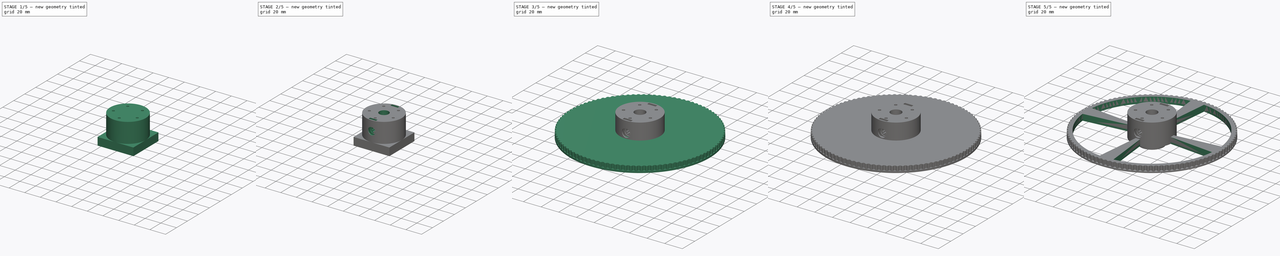
[diagram: build sequence overview — one tinted view per stage of 5, left to right]
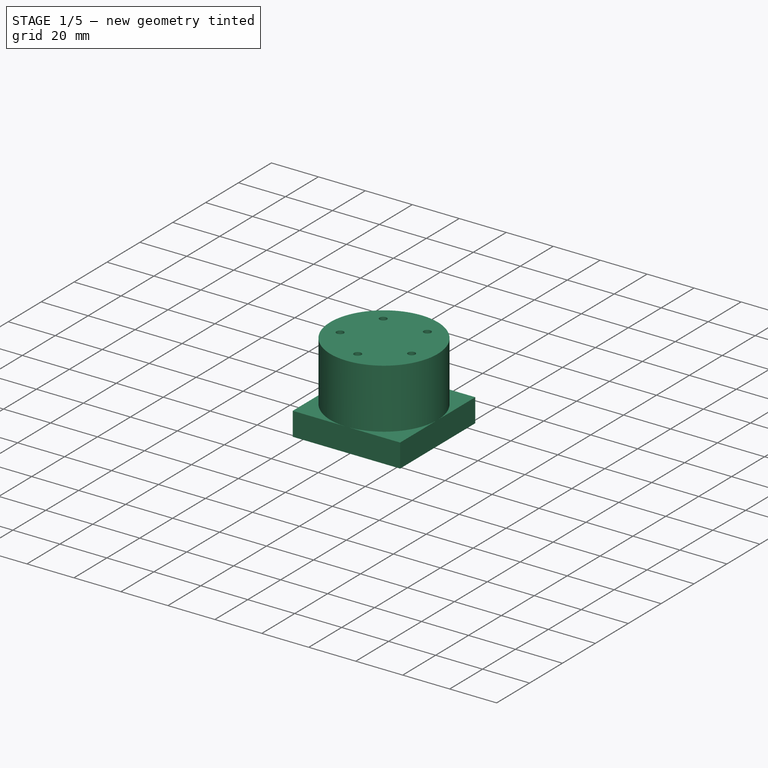
[diagram: stage 1 of 5 — iso view after this stage's code; geometry added in this stage tinted green]
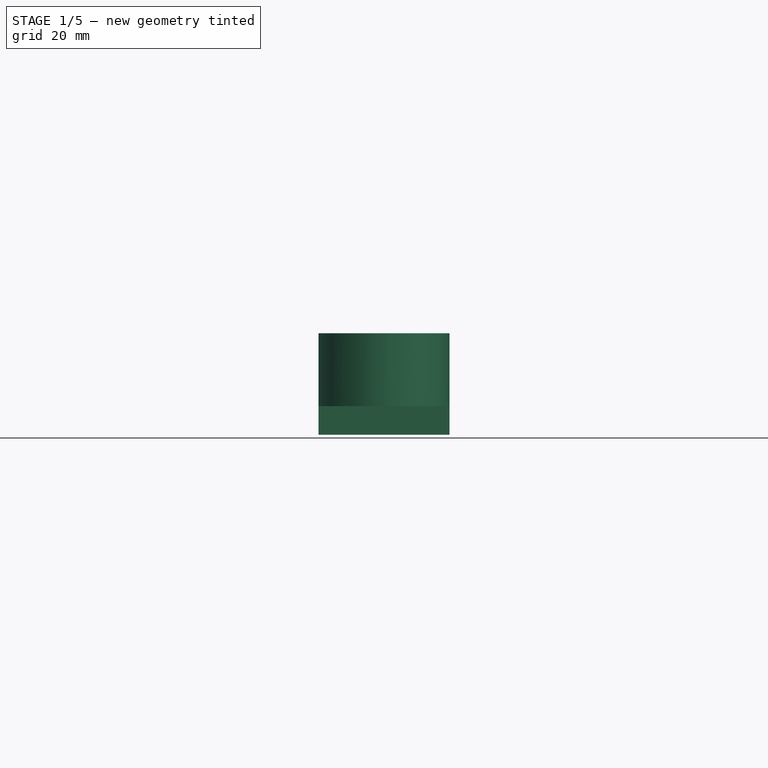
[diagram: stage 1 of 5 — front view after this stage's code; geometry added in this stage tinted green]
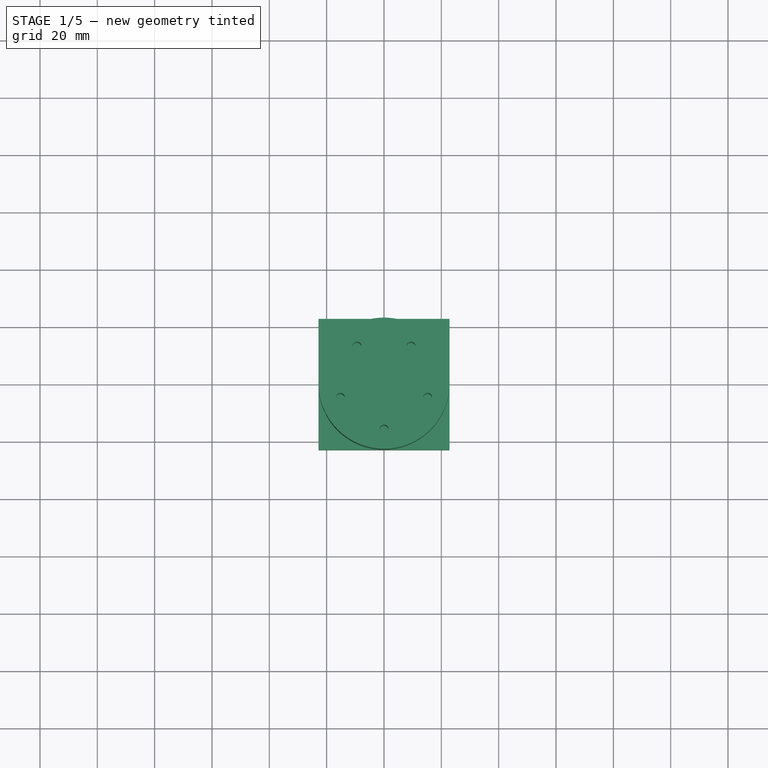
[diagram: stage 1 of 5 — top view after this stage's code; geometry added in this stage tinted green]
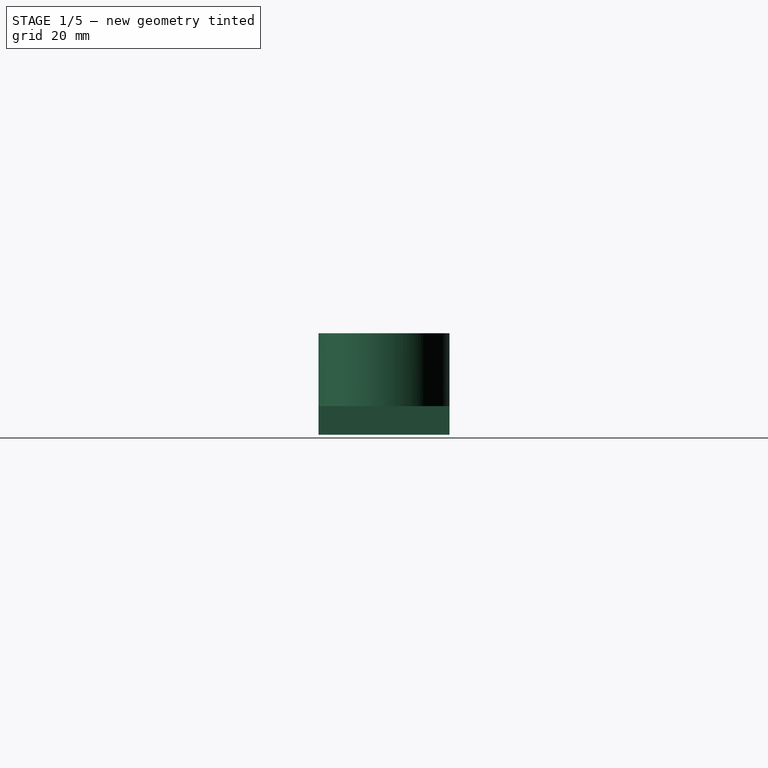
[diagram: stage 1 of 5 — right view after this stage's code; geometry added in this stage tinted green]
FCSTD DOCUMENT  (FreeCAD 0.21R33771 (Git))
Label: Spindle
License: All rights reserved
LicenseURL: http://en.wikipedia.org/wiki/All_rights_reserved
objects: Sketcher::SketchObject×25, PartDesign::Pocket×20, PartDesign::Body×5, App::Part×5, PartDesign::PolarPattern×5, PartDesign::Pad×5, PartDesign::FeaturePython×2, PartDesign::Chamfer×2, PartDesign::Fillet×1
note: 93 computed .brp shape members not serialized (recipe doc carries the construction recipe); baked Part::Feature solids carry a one-line shape summary decoded from their .brp

FEATURE [PartDesign::Body] Body002  label="SpoolWallBody"
  Group = -> [Sketch005,Pad,Sketch010,Pad001,Sketch007,Pocket005,Sketch006,Pocket006,Sketch008,Pocket007,PolarPattern002,Chamfer001,Sketch009,Pocket008,PolarPattern003,Fillet]
  Origin = -> Origin005
  Tip = -> Fillet
FEATURE [App::Part] Part002  label="SpoolWall"
  Group = -> [Body002]
  Origin = -> Origin004
FEATURE [Sketcher::SketchObject] Sketch019
  FullyConstrained = true
  MapMode = 5
  Support = -> [XY_Plane009]
  sketch-geometry (1):
    g0: Circle CenterX=0 CenterY=0 CenterZ=0 NormalX=0 NormalY=0 NormalZ=1 AngleXU=0 Radius=22.86
  constraints (2):
    c: Coincident(g0,g-1)
    c: Radius(g0) = 22.86
FEATURE [PartDesign::Pad] Pad003  label="HubPad"
  Direction = (0,0,1)
  Length = 25.4
  Length2 = 10
  Profile = -> Sketch019
  ReferenceAxis = -> Sketch019 [N_Axis]
  Type = 0
FEATURE [Sketcher::SketchObject] Sketch021
  FullyConstrained = true
  MapMode = 5
  Placement = pos=(0,0,0) rot=(1,0,0;3.14159rad)
  expr: Constraints[2] = 16 mm
  sketch-geometry (1):
    g0: Circle CenterX=0 CenterY=16 CenterZ=0 NormalX=0 NormalY=0 NormalZ=1 AngleXU=0 Radius=1.55
  constraints (3):
    c: PointOnObject(g0,g-2)
    c: Diameter(g0) = 3.1
    c: DistanceY(g-1,g0) = 16
FEATURE [PartDesign::Pocket] Pocket017  label="M3Pocket002"
  BaseFeature = -> Pad003
  Direction = (0,0,1)
  Length = 5
  Length2 = 5
  Profile = -> Sketch021
  ReferenceAxis = -> Sketch021 [N_Axis]
  Type = 1
FEATURE [PartDesign::PolarPattern] PolarPattern007  label="M3PolarPattern"
  Angle = 360
  Axis = -> Sketch021 [N_Axis]
  BaseFeature = -> Pocket017
  Occurrences = 5
  Originals = -> [Pocket017]
FEATURE [Sketcher::SketchObject] Sketch022
  FullyConstrained = true
  MapMode = 5
  Placement = pos=(0,0,0) rot=(1,0,0;3.14159rad)
  Support = -> [PolarPattern007]
  sketch-geometry (4):
    g0: LineSegment StartX=-22.86 StartY=22.86 StartZ=0 EndX=22.86 EndY=22.86 EndZ=0
    g1: LineSegment StartX=22.86 StartY=22.86 StartZ=0 EndX=22.86 EndY=-22.86 EndZ=0
    g2: LineSegment StartX=22.86 StartY=-22.86 StartZ=0 EndX=-22.86 EndY=-22.86 EndZ=0
    g3: LineSegment StartX=-22.86 StartY=-22.86 StartZ=0 EndX=-22.86 EndY=22.86 EndZ=0
  constraints (11):
    c: Coincident(g0,g1)
    c: Coincident(g1,g2)
    c: Coincident(g2,g3)
    c: Coincident(g3,g0)
    c: Horizontal(g0)
    c: Horizontal(g2)
    c: Vertical(g1)
    c: Vertical(g3)
    c: Symmetric(g0,g1,g-1)
    c: DistanceY(g1,g1) = 45.72
    c: DistanceX(g0,g0) = 45.72
FEATURE [PartDesign::Pad] Pad004  label="FakePad"
  BaseFeature = -> PolarPattern007
  Direction = (0,0,-1)
  Length = 10
  Length2 = 10
  Profile = -> Sketch022
  ReferenceAxis = -> Sketch022 [N_Axis]
  Type = 0
FEATURE [Sketcher::SketchObject] Sketch032
  FullyConstrained = true
  MapMode = 5
  Support = -> [XY_Plane011]
  sketch-geometry (4):
    g0: LineSegment StartX=-4 StartY=12.7 StartZ=0 EndX=4 EndY=12.7 EndZ=0
    g1: LineSegment StartX=4 StartY=12.7 StartZ=0 EndX=4 EndY=-12.7 EndZ=0
    g2: LineSegment StartX=4 StartY=-12.7 StartZ=0 EndX=-4 EndY=-12.7 EndZ=0
    g3: LineSegment StartX=-4 StartY=-12.7 StartZ=0 EndX=-4 EndY=12.7 EndZ=0
  constraints (11):
    c: Coincident(g0,g1)
    c: Coincident(g1,g2)
    c: Coincident(g2,g3)
    c: Coincident(g3,g0)
    c: Horizontal(g0)
    c: Horizontal(g2)
    c: Vertical(g1)
    c: Vertical(g3)
    c: DistanceX(g0,g0) = 8
    c: DistanceY(g1,g1) = 25.4
    c: Symmetric(g0,g1,g-1)
FEATURE [PartDesign::Pad] Pad005  label="SpringClipPad"
  Direction = (0,0,1)
  Length = 2.6
  Length2 = 10
  Profile = -> Sketch032
  ReferenceAxis = -> Sketch032 [N_Axis]
  Type = 0
FEATURE [PartDesign::Body] Body004  label="HubBody"
  Group = -> [Sketch019,Pad003,Sketch021,Pocket017,PolarPattern007,Sketch022,Pad004,Sketch023,Pocket018,Sketch025,Pocket020,Sketch027,Sketch028,Pocket023,Pocket024,Sketch029,Pocket025,Sketch031,Pocket027,Sketch034,Pocket029,Sketch030,Pocket030]
  Origin = -> Origin009
  Tip = -> Pocket030
FEATURE [App::Part] Part004  label="HubPart"
  Group = -> [Body004]
  Origin = -> Origin008
FEATURE [Sketcher::SketchObject] Sketch035
  FullyConstrained = true
  MapMode = 5
  Placement = pos=(0,0,2.9) rot=(0,0,1;0rad)
  sketch-geometry (1):
    g0: Circle CenterX=0 CenterY=0 CenterZ=0 NormalX=0 NormalY=0 NormalZ=1 AngleXU=0 Radius=1.7685
  constraints (2):
    c: Coincident(g0,g-1)
    c: Diameter(g0) = 3.537
FEATURE [PartDesign::Pocket] Pocket031  label="WirePocket1"
  BaseFeature = -> Pad005
  Direction = (0,0,1)
  Length = 5
  Length2 = 5
  Profile = -> Sketch033
  ReferenceAxis = -> Sketch033 [N_Axis]
  Type = 1
FEATURE [PartDesign::Pocket] Pocket032  label="WirePocket2"
  BaseFeature = -> Pocket031
  Direction = (0,0,-1)
  Length = 5
  Length2 = 5
  Profile = -> Sketch035
  ReferenceAxis = -> Sketch035 [N_Axis]
  Type = 1
FEATURE [PartDesign::Body] Body005  label="SpringClip"
  Group = -> [Sketch032,Pad005,Sketch033,Pocket031,Sketch035,Pocket032]
  Origin = -> Origin011
  Tip = -> Pocket032
FEATURE [App::Part] Part005  label="SpringClipPart"
  Group = -> [Body005]
  Origin = -> Origin010
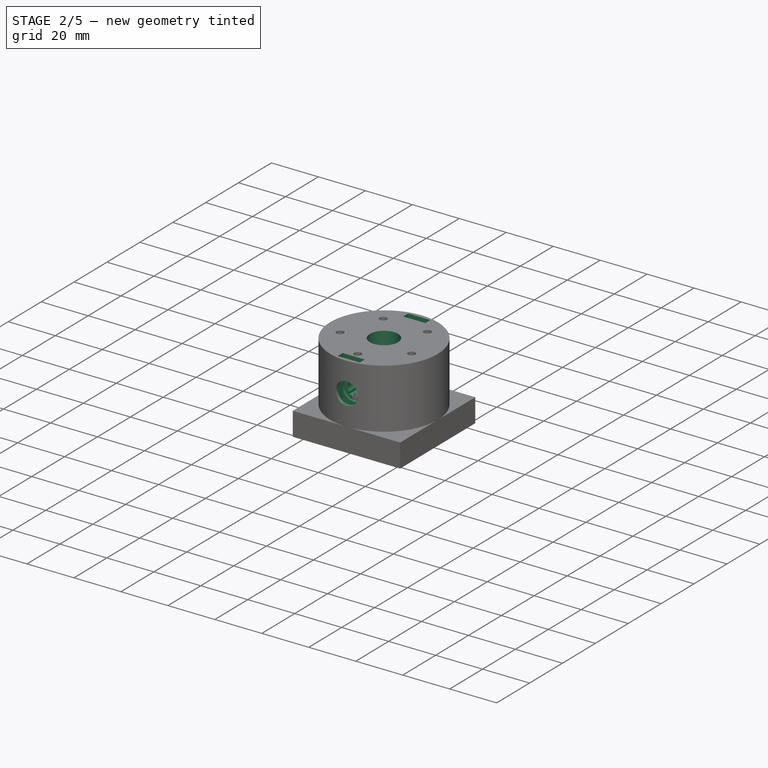
[diagram: stage 2 of 5 — iso view after this stage's code; geometry added in this stage tinted green]
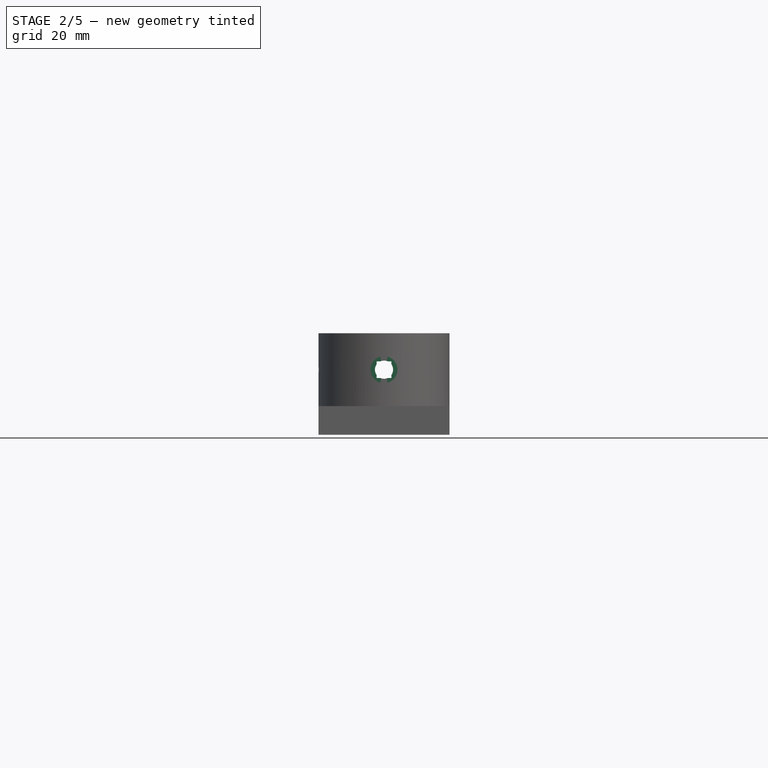
[diagram: stage 2 of 5 — front view after this stage's code; geometry added in this stage tinted green]
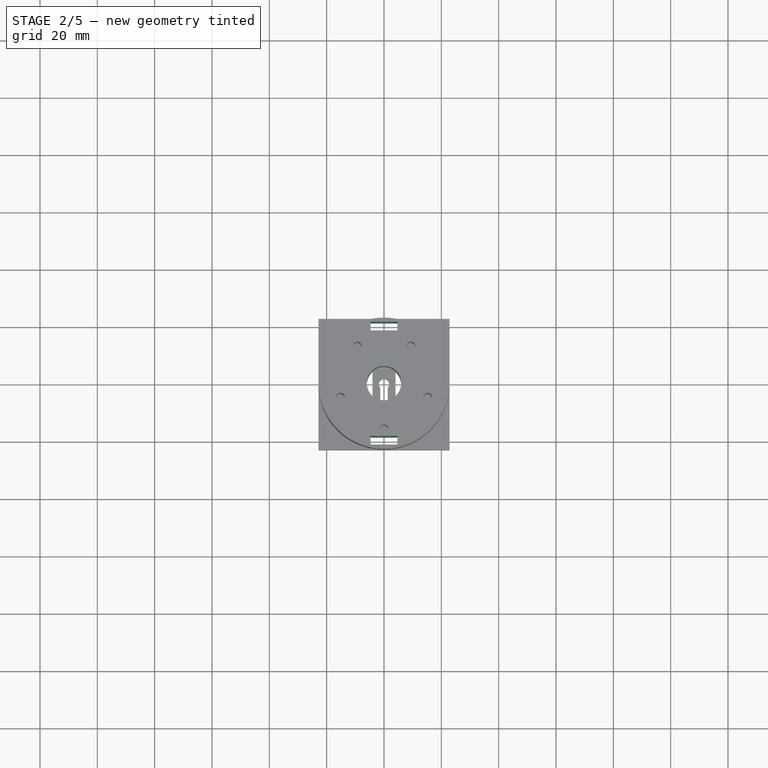
[diagram: stage 2 of 5 — top view after this stage's code; geometry added in this stage tinted green]
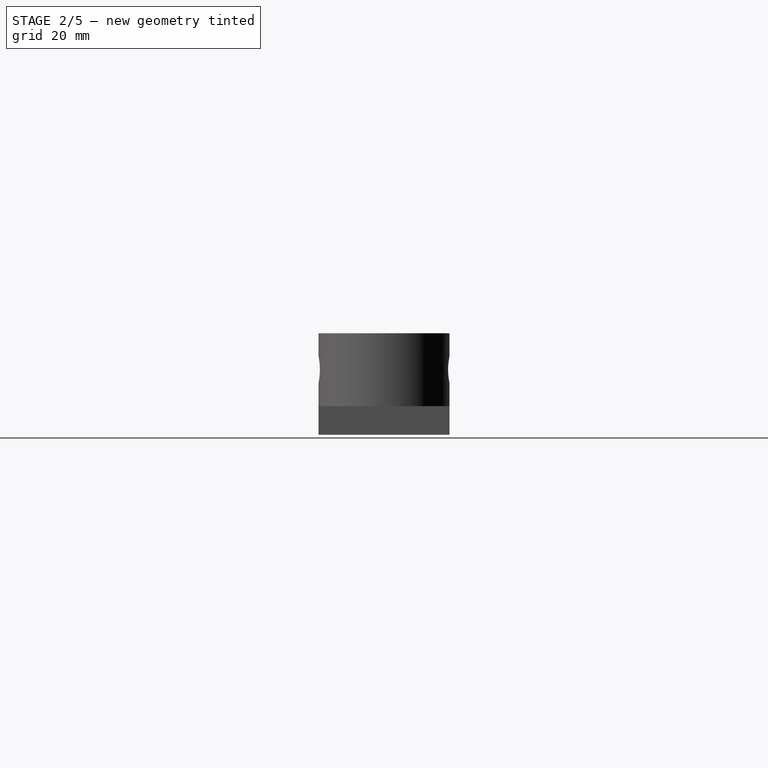
[diagram: stage 2 of 5 — right view after this stage's code; geometry added in this stage tinted green]
FEATURE [Sketcher::SketchObject] Sketch023
  FullyConstrained = true
  MapMode = 5
  Placement = pos=(0,22.86,0) rot=(0,0.707107,0.707107;3.14159rad)
  Support = -> [Pad004]
  sketch-geometry (4):
    g0: LineSegment StartX=-2.575 StartY=15.6 StartZ=0 EndX=2.575 EndY=15.6 EndZ=0
    g1: LineSegment StartX=2.575 StartY=15.6 StartZ=0 EndX=2.575 EndY=9.8 EndZ=0
    g2: LineSegment StartX=2.575 StartY=9.8 StartZ=0 EndX=-2.575 EndY=9.8 EndZ=0
    g3: LineSegment StartX=-2.575 StartY=9.8 StartZ=0 EndX=-2.575 EndY=15.6 EndZ=0
  constraints (12):
    c: Coincident(g0,g1)
    c: Coincident(g1,g2)
    c: Coincident(g2,g3)
    c: Coincident(g3,g0)
    c: Horizontal(g0)
    c: Horizontal(g2)
    c: Vertical(g1)
    c: Vertical(g3)
    c: DistanceX(g0,g0) = 5.15
    c: DistanceY(g1,g1) = 5.8
    c: DistanceY(g-1,g2) = 9.8
    c: DistanceX(g2,g-1) = 2.575
FEATURE [PartDesign::Pocket] Pocket018  label="BrushHole"
  BaseFeature = -> Pad004
  Direction = (0,-1,2e-16)
  Length = 5
  Length2 = 5
  Profile = -> Sketch023
  ReferenceAxis = -> Sketch023 [N_Axis]
  Type = 1
FEATURE [Sketcher::SketchObject] Sketch025
  FullyConstrained = true
  MapMode = 5
  Placement = pos=(0,-22.86,0) rot=(1,0,0;1.5708rad)
  sketch-geometry (1):
    g0: Circle CenterX=0 CenterY=12.7 CenterZ=0 NormalX=0 NormalY=0 NormalZ=1 AngleXU=0 Radius=4.7
  constraints (3):
    c: PointOnObject(g0,g-2)
    c: Diameter(g0) = 9.4
    c: DistanceY(g-1,g0) = 12.7
FEATURE [PartDesign::Pocket] Pocket020  label="SprintPocket1"
  BaseFeature = -> Pocket018
  Direction = (0,1,-2e-16)
  Length = 5.21
  Length2 = 5
  Profile = -> Sketch025
  ReferenceAxis = -> Sketch025 [N_Axis]
  Type = 0
  expr: Length = 0.9 " - 6 mm - 11.65 mm
FEATURE [Sketcher::SketchObject] Sketch028
  FullyConstrained = true
  MapMode = 5
  Placement = pos=(0,0,25.4) rot=(0,0,1;0rad)
  sketch-geometry (1):
    g0: Circle CenterX=0 CenterY=0 CenterZ=0 NormalX=0 NormalY=0 NormalZ=1 AngleXU=0 Radius=6
  constraints (2):
    c: Coincident(g0,g-1)
    c: Diameter(g0) = 12
FEATURE [PartDesign::Pocket] Pocket023  label="CenterPocket001"
  BaseFeature = -> Pocket020
  Direction = (0,0,-1)
  Length = 5
  Length2 = 5
  Profile = -> Sketch028
  ReferenceAxis = -> Sketch028 [N_Axis]
  Type = 1
FEATURE [Sketcher::SketchObject] Sketch027
  FullyConstrained = true
  MapMode = 5
  Placement = pos=(-22.86,0,0) rot=(0.57735,-0.57735,-0.57735;2.0944rad)
  Support = -> [Pocket023]
  sketch-geometry (1):
    g0: Circle CenterX=0 CenterY=12.7 CenterZ=0 NormalX=0 NormalY=0 NormalZ=1 AngleXU=0 Radius=1.5
  constraints (3):
    c: PointOnObject(g0,g-2)
    c: Diameter(g0) = 3
    c: DistanceY(g-1,g0) = 12.7
FEATURE [PartDesign::Pocket] Pocket024  label="SideHolePocket"
  BaseFeature = -> Pocket023
  Direction = (1,0,0)
  Length = 10
  Length2 = 5
  Profile = -> Sketch027
  ReferenceAxis = -> Sketch027 [N_Axis]
  Type = 0
FEATURE [Sketcher::SketchObject] Sketch029
  FullyConstrained = true
  MapMode = 5
  Placement = pos=(0,22.86,0) rot=(0,0.707107,0.707107;3.14159rad)
  Support = -> [Pocket024]
  sketch-geometry (1):
    g0: Circle CenterX=0 CenterY=12.7 CenterZ=0 NormalX=0 NormalY=0 NormalZ=1 AngleXU=0 Radius=4.7
  constraints (3):
    c: PointOnObject(g0,g-2)
    c: Diameter(g0) = 9.4
    c: DistanceY(g-1,g0) = 12.7
FEATURE [PartDesign::Pocket] Pocket025  label="SpringPocket2"
  BaseFeature = -> Pocket024
  Direction = (0,-1,2e-16)
  Length = 5.21
  Length2 = 5
  Profile = -> Sketch029
  ReferenceAxis = -> Sketch029 [N_Axis]
  Type = 0
  expr: Length = 0.9 " - 6 mm - 11.65 mm
FEATURE [Sketcher::SketchObject] Sketch031
  FullyConstrained = true
  MapMode = 5
  Placement = pos=(0,0,25.4) rot=(0,0,1;0rad)
  sketch-geometry (8):
    g0: LineSegment StartX=-4.7 StartY=21.4 StartZ=0 EndX=4.7 EndY=21.4 EndZ=0
    g1: LineSegment StartX=4.7 StartY=21.4 StartZ=0 EndX=4.7 EndY=18.4 EndZ=0
    g2: LineSegment StartX=4.7 StartY=18.4 StartZ=0 EndX=-4.7 EndY=18.4 EndZ=0
    g3: LineSegment StartX=-4.7 StartY=18.4 StartZ=0 EndX=-4.7 EndY=21.4 EndZ=0
    g4: LineSegment StartX=-4.7 StartY=-18.4 StartZ=0 EndX=4.7 EndY=-18.4 EndZ=0
    g5: LineSegment StartX=4.7 StartY=-18.4 StartZ=0 EndX=4.7 EndY=-21.4 EndZ=0
    g6: LineSegment StartX=4.7 StartY=-21.4 StartZ=0 EndX=-4.7 EndY=-21.4 EndZ=0
    g7: LineSegment StartX=-4.7 StartY=-21.4 StartZ=0 EndX=-4.7 EndY=-18.4 EndZ=0
  constraints (24):
    c: Coincident(g0,g1)
    c: Coincident(g1,g2)
    c: Coincident(g2,g3)
    c: Coincident(g3,g0)
    c: Horizontal(g0)
    c: Horizontal(g2)
    c: Vertical(g1)
    c: Vertical(g3)
    c: Coincident(g4,g5)
    c: Coincident(g5,g6)
    c: Coincident(g6,g7)
    c: Coincident(g7,g4)
    c: Horizontal(g4)
    c: Horizontal(g6)
    c: Vertical(g5)
    c: Vertical(g7)
    c: DistanceX(g0,g0) = 9.4
    c: DistanceX(g4,g4) = 9.4
    c: DistanceY(g1,g1) = 3
    c: DistanceY(g5,g5) = 3
    c: DistanceY(g-1,g2) = 18.4
    c: DistanceY(g4,g-1) = 18.4
    c: DistanceX(g2,g-1) = 4.7
    c: DistanceX(g4,g-1) = 4.7
FEATURE [PartDesign::Pocket] Pocket027  label="SpringHolderPocket"
  BaseFeature = -> Pocket025
  Direction = (0,0,-1)
  Length = 5
  Length2 = 5
  Profile = -> Sketch031
  ReferenceAxis = -> Sketch031 [N_Axis]
  Type = 1
FEATURE [Sketcher::SketchObject] Sketch033
  FullyConstrained = true
  MapMode = 5
  Placement = pos=(0,0,0) rot=(1,0,0;3.14159rad)
  Support = -> [Pad005]
  sketch-geometry (4):
    g0: ArcOfCircle CenterX=0 CenterY=0 CenterZ=0 NormalX=0 NormalY=0 NormalZ=1 AngleXU=0 Radius=1.294 StartAngle=3.14159 EndAngle=6.28319
    g1: LineSegment StartX=1.294 StartY=-3e-16 StartZ=0 EndX=1.294 EndY=12.7 EndZ=0
    g2: LineSegment StartX=1.294 StartY=12.7 StartZ=0 EndX=-1.294 EndY=12.7 EndZ=0
    g3: LineSegment StartX=-1.294 StartY=12.7 StartZ=0 EndX=-1.294 EndY=0 EndZ=0
  constraints (12):
    c: Horizontal(g2)
    c: Vertical(g1)
    c: Vertical(g3)
    c: DistanceX(g0,g0) = 1.294
    c: DistanceY(g0,g0) = 0
    c: DistanceY(g0,g0) = 0
    c: Coincident(g0,g-1)
    c: Coincident(g3,g0)
    c: Coincident(g1,g0)
    c: DistanceY(g1,g1) = 12.7
    c: Coincident(g2,g1)
    c: Coincident(g2,g3)
FEATURE [Sketcher::SketchObject] Sketch034
  FullyConstrained = true
  Placement = pos=(0,-22.86,0) rot=(1,0,0;1.5708rad)
  sketch-geometry (1):
    g0: Circle CenterX=0 CenterY=12.7 CenterZ=0 NormalX=0 NormalY=0 NormalZ=1 AngleXU=0 Radius=3.1645
  constraints (3):
    c: PointOnObject(g0,g-2)
    c: DistanceY(g-1,g0) = 12.7
    c: Diameter(g0) = 6.329
FEATURE [PartDesign::Pocket] Pocket029  label="ExtraSpingPocket"
  BaseFeature = -> Pocket027
  Direction = (0,1,-2e-16)
  Length = 18.86
  Length2 = 5
  Profile = -> Sketch034
  ReferenceAxis = -> Sketch034 [N_Axis]
  Type = 1
  expr: Length = 1.8 " / 2 - 4 mm
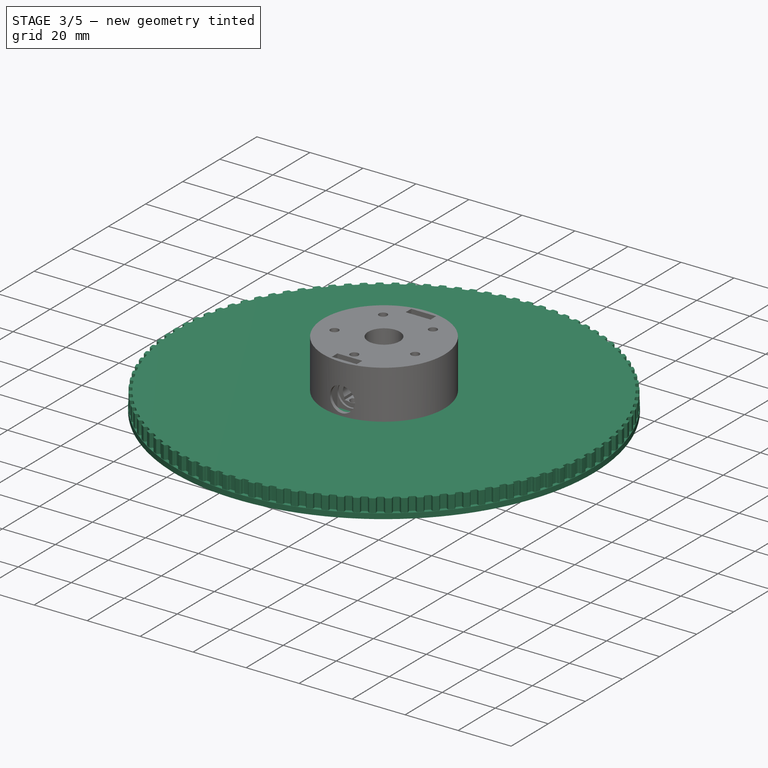
[diagram: stage 3 of 5 — iso view after this stage's code; geometry added in this stage tinted green]
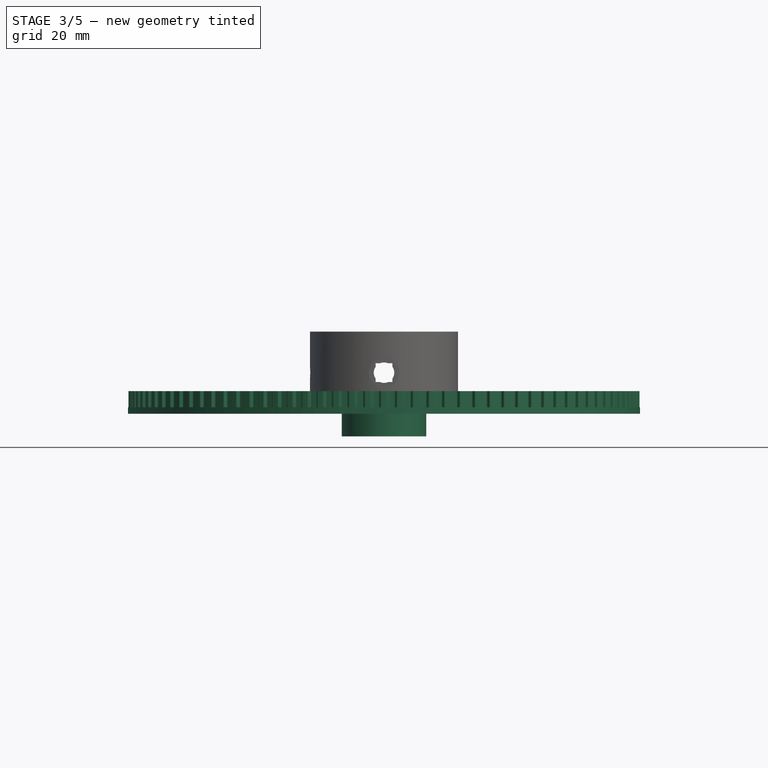
[diagram: stage 3 of 5 — front view after this stage's code; geometry added in this stage tinted green]
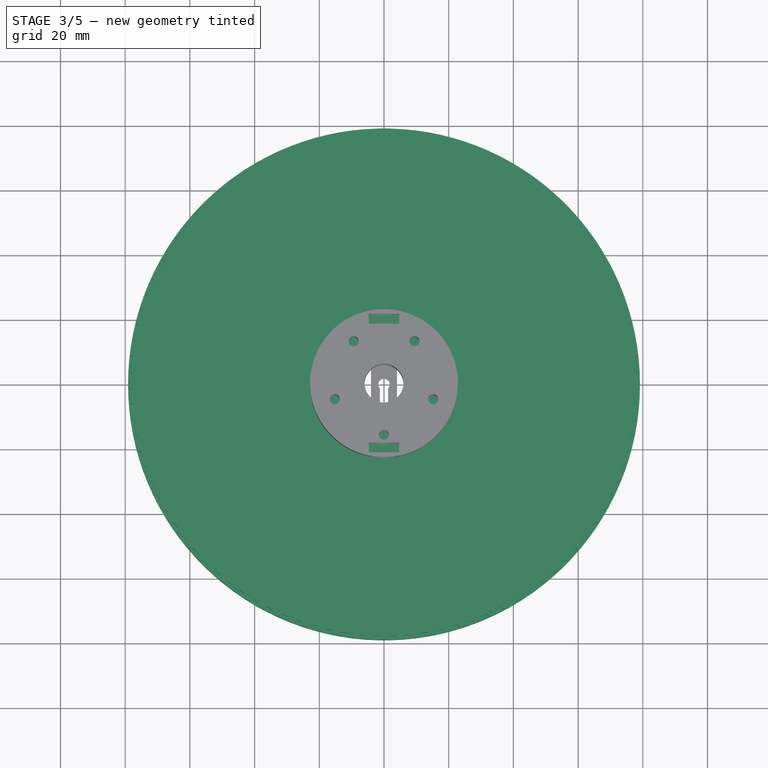
[diagram: stage 3 of 5 — top view after this stage's code; geometry added in this stage tinted green]
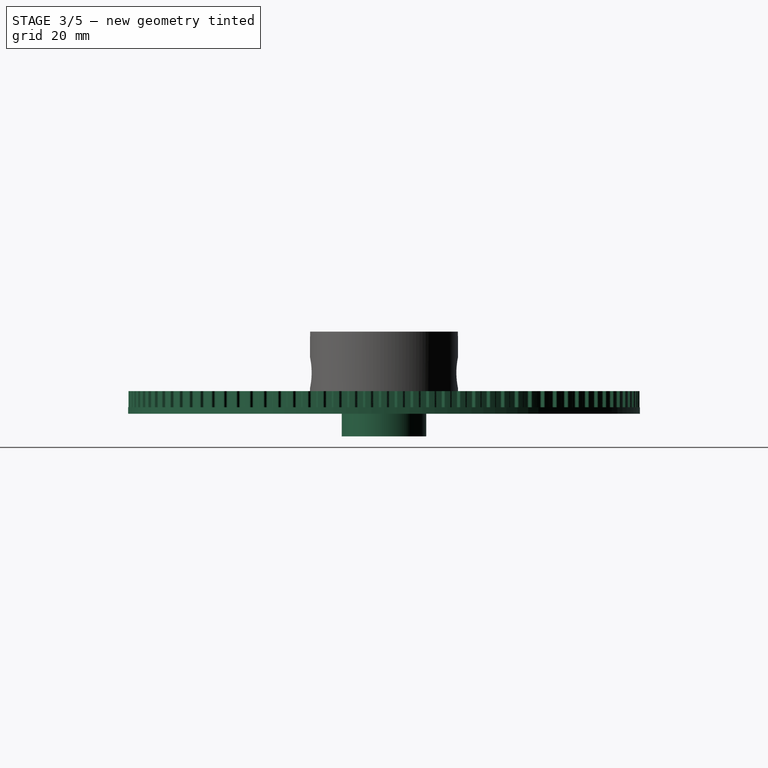
[diagram: stage 3 of 5 — right view after this stage's code; geometry added in this stage tinted green]
FEATURE [PartDesign::FeaturePython] TimingGearT  # WARN: FeaturePython — macro-defined, semantics opaque (R4)
  AttacherType = Attacher::AttachEngine3D
  alpha = 25
  backlash = 0
  head_fillet = 0.4
  height = 7
  pitch = 5
  root_fillet = 0.4
  teeth = 100
  tooth_height = 1.2
  u = 0.6
  expr: height = 7 mm
FEATURE [PartDesign::Body] Body001  label="LittleGearBody"
  Group = -> [TimingGearT001,Sketch,Pocket]
  Origin = -> Origin003
  Tip = -> Pocket
FEATURE [App::Part] Part001  label="LittleGearPart"
  Group = -> [Body001]
  Origin = -> Origin002
FEATURE [Sketcher::SketchObject] Sketch001
  FullyConstrained = true
  MapMode = 5
  Placement = pos=(0,0,0) rot=(1,0,0;3.14159rad)
  Support = -> [TimingGearT]
  sketch-geometry (1):
    g0: Circle CenterX=0 CenterY=0 CenterZ=0 NormalX=0 NormalY=0 NormalZ=1 AngleXU=0 Radius=7
  constraints (2):
    c: Coincident(g0,g-1)
    c: Diameter(g0) = 14
FEATURE [PartDesign::Pocket] Pocket001  label="CenterPocket"
  BaseFeature = -> TimingGearT
  Direction = (0,0,1)
  Length = 5
  Length2 = 5
  Profile = -> Sketch001
  ReferenceAxis = -> Sketch001 [N_Axis]
  Type = 1
FEATURE [PartDesign::Body] Body  label="BigGearBody"
  Group = -> [TimingGearT,Sketch001,Pocket001,Sketch002,Pocket002,Sketch003,Pocket003,PolarPattern,Chamfer,Sketch004,Pocket004,PolarPattern001]
  Origin = -> Origin001
  Tip = -> PolarPattern001
FEATURE [App::Part] Part  label="BigGearPart"
  Group = -> [Body]
  Origin = -> Origin
FEATURE [Sketcher::SketchObject] Sketch005
  FullyConstrained = true
  MapMode = 5
  Support = -> [XY_Plane005]
  sketch-geometry (1):
    g0: Circle CenterX=0 CenterY=0 CenterZ=0 NormalX=0 NormalY=0 NormalZ=1 AngleXU=0 Radius=79.121
  constraints (2):
    c: Coincident(g0,g-1)
    c: Radius(g0) = 79.121
FEATURE [PartDesign::Pad] Pad  label="SpoolWallPad"
  Direction = (0,0,1)
  Length = 2
  Length2 = 10
  Profile = -> Sketch005
  ReferenceAxis = -> Sketch005 [N_Axis]
  Type = 0
FEATURE [Sketcher::SketchObject] Sketch006
  FullyConstrained = true
  MapMode = 5
  Placement = pos=(0,0,0) rot=(1,0,0;3.14159rad)
  Support = -> [TimingGearT]
  sketch-geometry (1):
    g0: Circle CenterX=0 CenterY=0 CenterZ=0 NormalX=0 NormalY=0 NormalZ=1 AngleXU=0 Radius=7
  constraints (2):
    c: Coincident(g0,g-1)
    c: Diameter(g0) = 14
FEATURE [Sketcher::SketchObject] Sketch008
  FullyConstrained = true
  MapMode = 5
  Placement = pos=(0,0,0) rot=(1,0,0;3.14159rad)
  Support = -> [Pocket002]
  expr: Constraints[2] = 16 mm
  sketch-geometry (1):
    g0: Circle CenterX=0 CenterY=16 CenterZ=0 NormalX=0 NormalY=0 NormalZ=1 AngleXU=0 Radius=1.55
  constraints (3):
    c: PointOnObject(g0,g-2)
    c: Diameter(g0) = 3.1
    c: DistanceY(g-1,g0) = 16
FEATURE [Sketcher::SketchObject] Sketch009
  FullyConstrained = true
  MapMode = 5
  Placement = pos=(0,0,0) rot=(1,0,0;3.14159rad)
  Support = -> [Chamfer]
  sketch-geometry (4):
    g0: ArcOfCircle CenterX=0 CenterY=0 CenterZ=0 NormalX=0 NormalY=0 NormalZ=1 AngleXU=0 Radius=22.86 StartAngle=1.67625 EndAngle=3.03613
    g1: ArcOfCircle CenterX=0 CenterY=0 CenterZ=0 NormalX=0 NormalY=0 NormalZ=1 AngleXU=0 Radius=73.66 StartAngle=1.67443 EndAngle=3.03796
    g2: LineSegment StartX=-2.40631 StartY=22.733 StartZ=0 EndX=-7.62 EndY=73.2648 EndZ=0
    g3: LineSegment StartX=-22.733 StartY=2.40631 StartZ=0 EndX=-73.2648 EndY=7.62 EndZ=0
  constraints (12):
    c: Coincident(g0,g-1)
    c: Radius(g0) = 22.86
    c: Coincident(g1,g0)
    c: Radius(g1) = 73.66
    c: DistanceX(g2,g0) = 7.62
    c: DistanceY(g0,g3) = 7.62
    c: Coincident(g1,g3)
    c: Coincident(g1,g2)
    c: Coincident(g3,g0)
    c: Coincident(g2,g0)
    c: DistanceX(g0,g0) = 22.733
    c: DistanceY(g0,g0) = 22.733
FEATURE [Sketcher::SketchObject] Sketch010
  FullyConstrained = true
  MapMode = 5
  Placement = pos=(0,0,0) rot=(1,0,0;3.14159rad)
  Support = -> [Pad]
  sketch-geometry (1):
    g0: Circle CenterX=0 CenterY=0 CenterZ=0 NormalX=0 NormalY=0 NormalZ=1 AngleXU=0 Radius=13.0462
  constraints (2):
    c: Coincident(g0,g-1)
    c: Radius(g0) = 13.0462
FEATURE [PartDesign::Pad] Pad001  label="BearingWall"
  BaseFeature = -> Pad
  Direction = (0,0,-1)
  Length = 7
  Length2 = 10
  Profile = -> Sketch010
  ReferenceAxis = -> Sketch010 [N_Axis]
  Type = 0
FEATURE [Sketcher::SketchObject] Sketch007
  FullyConstrained = true
  MapMode = 5
  Placement = pos=(0,0,-7) rot=(1,0,0;3.14159rad)
  Support = -> [Pad001]
  sketch-geometry (1):
    g0: Circle CenterX=0 CenterY=0 CenterZ=0 NormalX=0 NormalY=0 NormalZ=1 AngleXU=0 Radius=11.05
  constraints (2):
    c: Coincident(g0,g-1)
    c: Diameter(g0) = 22.1
FEATURE [PartDesign::Pocket] Pocket005  label="BearingPocket001"
  BaseFeature = -> Pad001
  Direction = (0,0,1)
  Length = 7
  Length2 = 5
  Profile = -> Sketch007
  ReferenceAxis = -> Sketch007 [N_Axis]
  Type = 0
FEATURE [PartDesign::Pocket] Pocket006  label="ShaftPocket001"
  BaseFeature = -> Pocket005
  Direction = (0,0,1)
  Length = 5.0038
  Length2 = 5
  Profile = -> Sketch006
  ReferenceAxis = -> Sketch006 [N_Axis]
  Type = 0
FEATURE [Sketcher::SketchObject] Sketch030
  FullyConstrained = true
  MapMode = 5
  Placement = pos=(0,0,-10) rot=(1,0,0;3.14159rad)
  Support = -> [Pocket029]
  sketch-geometry (4):
    g0: LineSegment StartX=-22.86 StartY=22.86 StartZ=0 EndX=22.86 EndY=22.86 EndZ=0
    g1: LineSegment StartX=22.86 StartY=22.86 StartZ=0 EndX=22.86 EndY=-22.86 EndZ=0
    g2: LineSegment StartX=22.86 StartY=-22.86 StartZ=0 EndX=-22.86 EndY=-22.86 EndZ=0
    g3: LineSegment StartX=-22.86 StartY=-22.86 StartZ=0 EndX=-22.86 EndY=22.86 EndZ=0
  constraints (11):
    c: Coincident(g0,g1)
    c: Coincident(g1,g2)
    c: Coincident(g2,g3)
    c: Coincident(g3,g0)
    c: Horizontal(g0)
    c: Horizontal(g2)
    c: Vertical(g1)
    c: Vertical(g3)
    c: DistanceX(g0,g0) = 45.72
    c: DistanceY(g1,g1) = 45.72
    c: Symmetric(g0,g1,g-1)
FEATURE [PartDesign::Pocket] Pocket030  label="FakePadRemoval"
  BaseFeature = -> Pocket029
  Direction = (0,0,1)
  Length = 10
  Length2 = 5
  Profile = -> Sketch030
  ReferenceAxis = -> Sketch030 [N_Axis]
  Type = 0
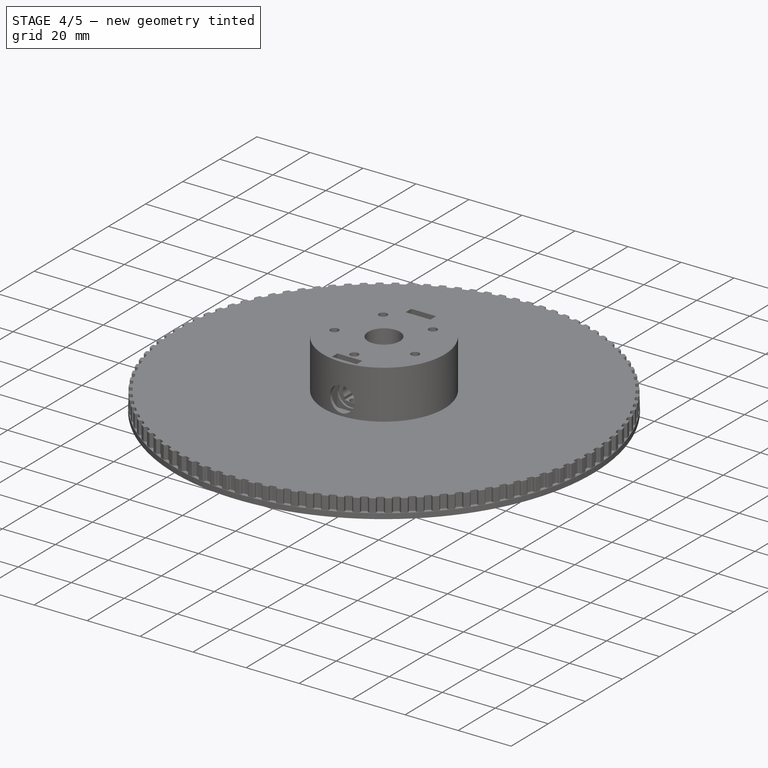
[diagram: stage 4 of 5 — iso view after this stage's code; geometry added in this stage tinted green]
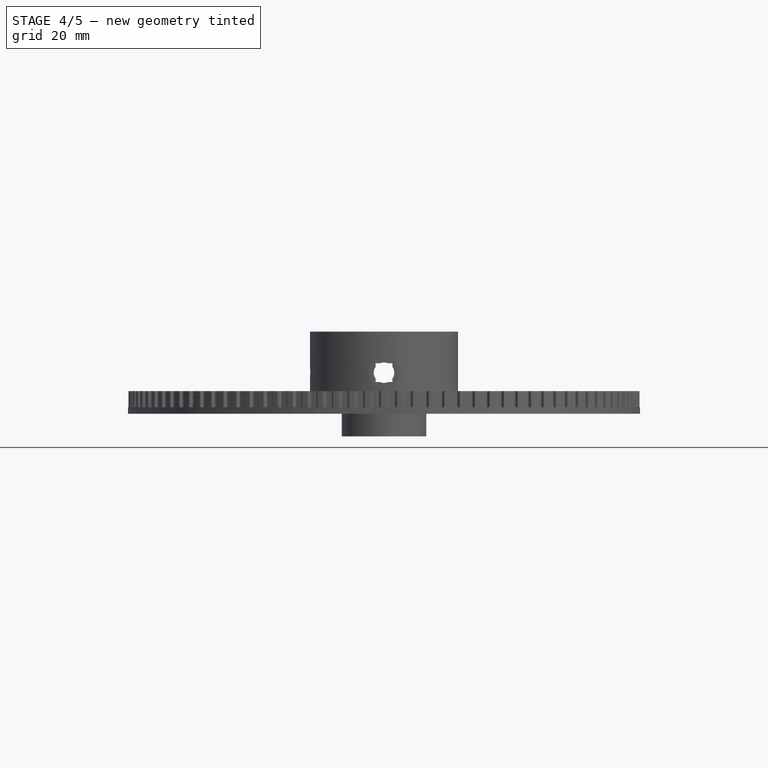
[diagram: stage 4 of 5 — front view after this stage's code; geometry added in this stage tinted green]
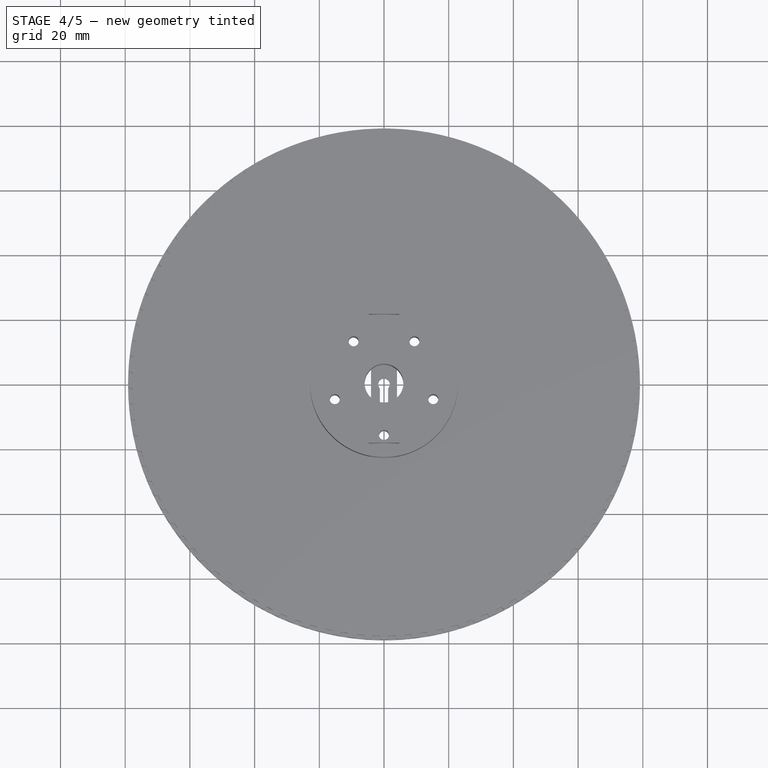
[diagram: stage 4 of 5 — top view after this stage's code; geometry added in this stage tinted green]
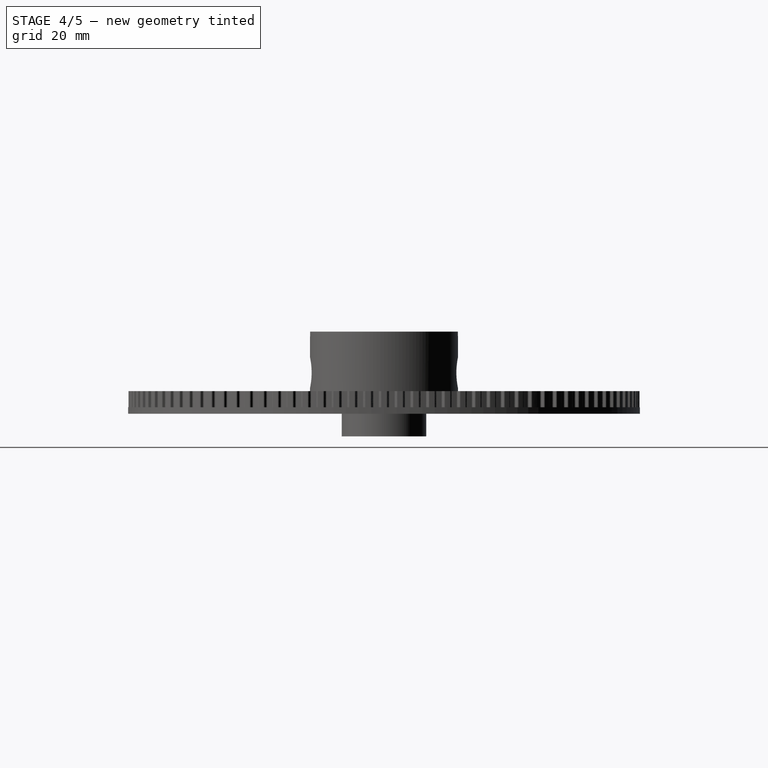
[diagram: stage 4 of 5 — right view after this stage's code; geometry added in this stage tinted green]
FEATURE [Sketcher::SketchObject] Sketch002
  FullyConstrained = true
  MapMode = 5
  Placement = pos=(0,0,0) rot=(1,0,0;3.14159rad)
  Support = -> [Pocket001]
  sketch-geometry (1):
    g0: Circle CenterX=0 CenterY=0 CenterZ=0 NormalX=0 NormalY=0 NormalZ=1 AngleXU=0 Radius=11.05
  constraints (2):
    c: Coincident(g0,g-1)
    c: Diameter(g0) = 22.1
FEATURE [PartDesign::Pocket] Pocket002  label="BearingPocket"
  BaseFeature = -> Pocket001
  Direction = (0,0,1)
  Length = 5.5
  Length2 = 5
  Profile = -> Sketch002
  ReferenceAxis = -> Sketch002 [N_Axis]
  Type = 0
  expr: Length = 5.5 mm
FEATURE [Sketcher::SketchObject] Sketch003
  FullyConstrained = true
  MapMode = 5
  Placement = pos=(0,0,0) rot=(1,0,0;3.14159rad)
  Support = -> [Pocket002]
  expr: Constraints[2] = 16 mm
  sketch-geometry (1):
    g0: Circle CenterX=0 CenterY=16 CenterZ=0 NormalX=0 NormalY=0 NormalZ=1 AngleXU=0 Radius=1.55
  constraints (3):
    c: PointOnObject(g0,g-2)
    c: Diameter(g0) = 3.1
    c: DistanceY(g-1,g0) = 16
FEATURE [PartDesign::Pocket] Pocket003  label="M3Pocket"
  BaseFeature = -> Pocket002
  Direction = (0,0,1)
  Length = 5
  Length2 = 5
  Profile = -> Sketch003
  ReferenceAxis = -> Sketch003 [N_Axis]
  Type = 1
FEATURE [PartDesign::PolarPattern] PolarPattern  label="M3ScrewPattern"
  Angle = 360
  Axis = -> Sketch003 [N_Axis]
  BaseFeature = -> Pocket003
  Occurrences = 5
  Originals = -> [Pocket003]
FEATURE [PartDesign::Chamfer] Chamfer  label="M3Chamfer"
  Angle = 45
  Base = -> PolarPattern [Edge813,Edge810,Edge809,Edge808,Edge811]
  BaseFeature = -> PolarPattern
  ChamferType = 0
  FlipDirection = false
  Size = 3
  Size2 = 1
  SupportTransform = false
  UseAllEdges = false
FEATURE [PartDesign::Pocket] Pocket007  label="M3Pocket001"
  BaseFeature = -> Pocket006
  Direction = (0,0,1)
  Length = 5.0038
  Length2 = 5
  Profile = -> Sketch008
  ReferenceAxis = -> Sketch008 [N_Axis]
  Type = 0
FEATURE [PartDesign::PolarPattern] PolarPattern002
  Angle = 360
  Axis = -> Sketch008 [N_Axis]
  BaseFeature = -> Pocket007
  Occurrences = 5
  Originals = -> [Pocket007]
FEATURE [PartDesign::Chamfer] Chamfer001  label="M#Chamfer"
  Angle = 45
  Base = -> PolarPattern002 [Edge5,Edge6,Edge4,Edge7,Edge9]
  BaseFeature = -> PolarPattern002
  ChamferType = 0
  FlipDirection = false
  Size = 1.4
  Size2 = 1
  SupportTransform = false
  UseAllEdges = false
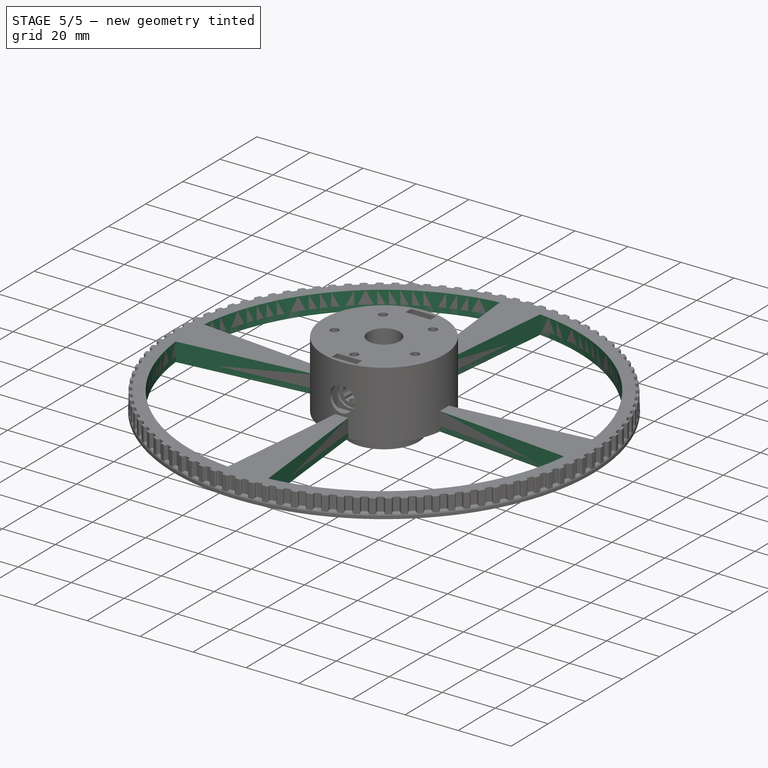
[diagram: stage 5 of 5 — iso view after this stage's code; geometry added in this stage tinted green]
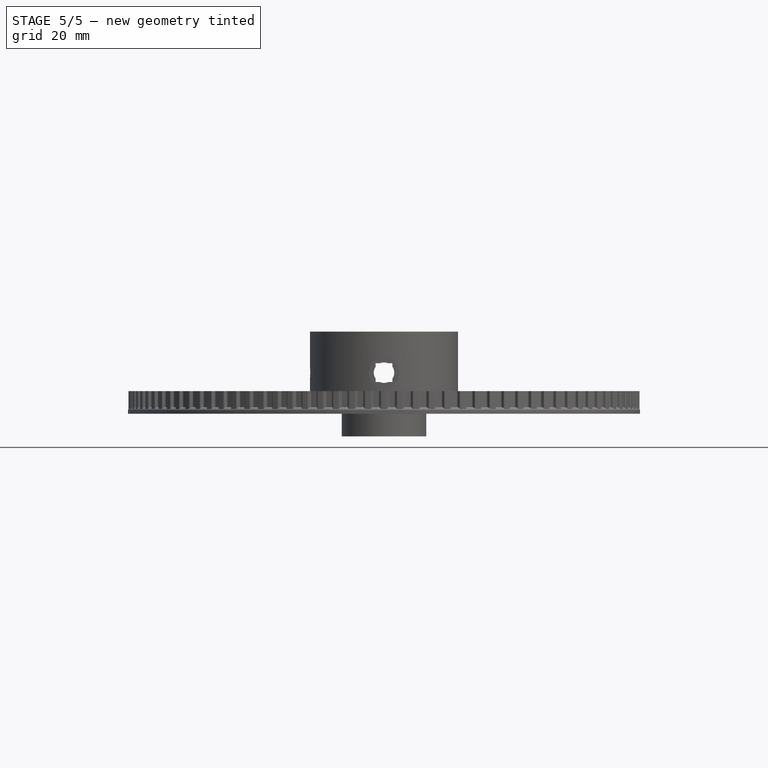
[diagram: stage 5 of 5 — front view after this stage's code; geometry added in this stage tinted green]
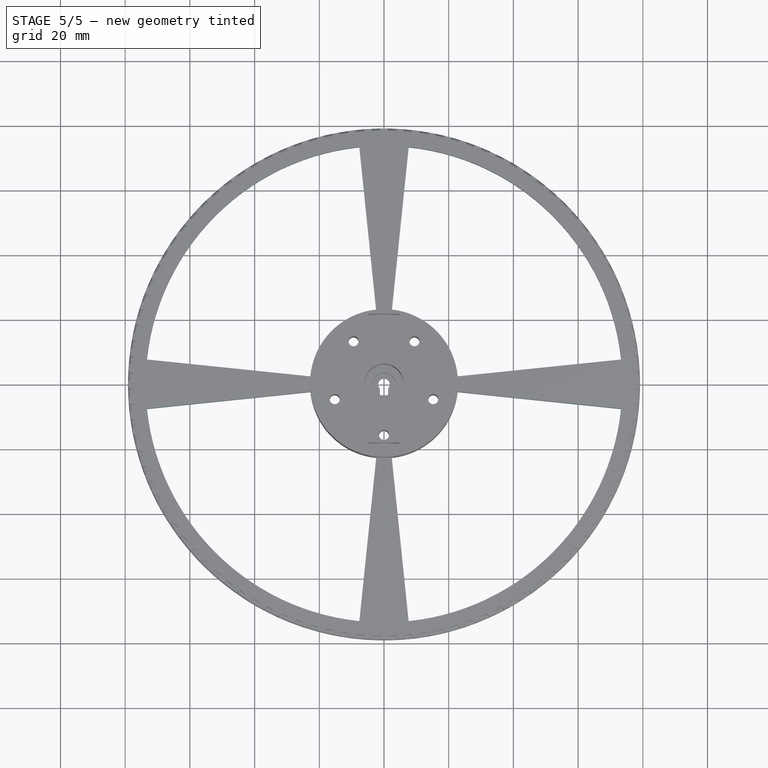
[diagram: stage 5 of 5 — top view after this stage's code; geometry added in this stage tinted green]
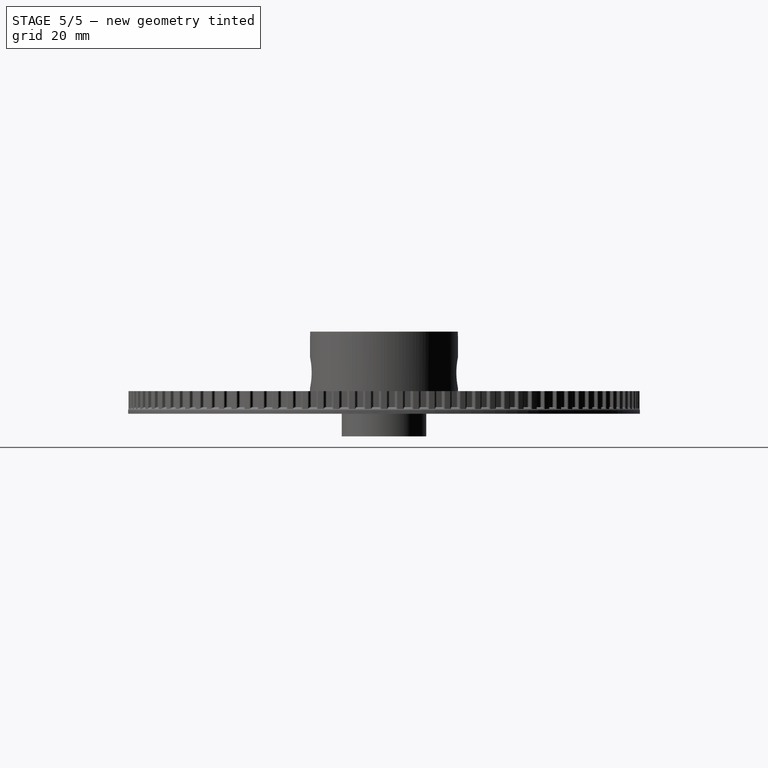
[diagram: stage 5 of 5 — right view after this stage's code; geometry added in this stage tinted green]
FEATURE [PartDesign::FeaturePython] TimingGearT001  # WARN: FeaturePython — macro-defined, semantics opaque (R4)
  AttacherType = Attacher::AttachEngine3D
  alpha = 25
  backlash = 0
  head_fillet = 0.4
  height = 7.0104
  pitch = 5
  root_fillet = 0.4
  teeth = 15
  tooth_height = 1.2
  u = 0.6
FEATURE [Sketcher::SketchObject] Sketch
  FullyConstrained = true
  MapMode = 5
  Placement = pos=(0,0,0) rot=(1,0,0;3.14159rad)
  Support = -> [TimingGearT001]
  expr: Constraints[1] = 7 mm
  sketch-geometry (1):
    g0: Circle CenterX=0 CenterY=0 CenterZ=0 NormalX=0 NormalY=0 NormalZ=1 AngleXU=0 Radius=3.5
  constraints (2):
    c: Coincident(g0,g-1)
    c: Diameter(g0) = 7
FEATURE [PartDesign::Pocket] Pocket  label="ShaftPocket"
  BaseFeature = -> TimingGearT001
  Direction = (0,0,1)
  Length = 7
  Length2 = 5
  Profile = -> Sketch
  ReferenceAxis = -> Sketch [N_Axis]
  Type = 1
  expr: Length = 7 mm
FEATURE [Sketcher::SketchObject] Sketch004
  FullyConstrained = false
  MapMode = 5
  Placement = pos=(0,0,0) rot=(1,0,0;3.14159rad)
  Support = -> [Chamfer]
  sketch-geometry (6):
    g0: ArcOfCircle CenterX=0 CenterY=0 CenterZ=0 NormalX=0 NormalY=0 NormalZ=1 AngleXU=0 Radius=22.86 StartAngle=1.67625 EndAngle=3.03613
    g1: ArcOfCircle CenterX=0 CenterY=0 CenterZ=0 NormalX=0 NormalY=0 NormalZ=1 AngleXU=0 Radius=73.66 StartAngle=1.67443 EndAngle=3.03796
    g2: LineSegment StartX=-2.40631 StartY=22.733 StartZ=0 EndX=-7.62 EndY=73.2648 EndZ=0
    g3: LineSegment StartX=-22.733 StartY=2.40631 StartZ=0 EndX=-73.2648 EndY=7.62 EndZ=0
    g4: GeomPoint X=-22.7428 Y=2.40732 Z=0
    g5: GeomPoint X=-2.3701 Y=22.7368 Z=0
  constraints (14):
    c: Coincident(g0,g-1)
    c: Radius(g0) = 22.86
    c: Coincident(g1,g0)
    c: Radius(g1) = 73.66
    c: DistanceX(g2,g0) = 7.62
    c: DistanceY(g0,g3) = 7.62
    c: PointOnObject(g4,g3)
    c: PointOnObject(g5,g0)
    c: Coincident(g1,g3)
    c: Coincident(g1,g2)
    c: Coincident(g3,g0)
    c: Coincident(g2,g0)
    c: DistanceX(g0,g0) = 22.733
    c: DistanceY(g0,g0) = 22.733
FEATURE [PartDesign::Pocket] Pocket004  label="BigPocket"
  BaseFeature = -> Chamfer
  Direction = (0,0,1)
  Length = 5
  Length2 = 5
  Profile = -> Sketch004
  ReferenceAxis = -> Sketch004 [N_Axis]
  Type = 1
FEATURE [PartDesign::PolarPattern] PolarPattern001
  Angle = 360
  Axis = -> Sketch004 [N_Axis]
  BaseFeature = -> Pocket004
  Occurrences = 4
  Originals = -> [Pocket004]
FEATURE [PartDesign::Pocket] Pocket008  label="WallPocket"
  BaseFeature = -> Chamfer001
  Direction = (0,0,1)
  Length = 5.0038
  Length2 = 5
  Profile = -> Sketch009
  ReferenceAxis = -> Sketch009 [N_Axis]
  Type = 0
FEATURE [PartDesign::PolarPattern] PolarPattern003  label="WallPocketPolarPattern"
  Angle = 360
  Axis = -> Sketch009 [N_Axis]
  BaseFeature = -> Pocket008
  Occurrences = 4
  Originals = -> [Pocket008]
FEATURE [PartDesign::Fillet] Fillet  label="EdgeFillet"
  Base = -> PolarPattern003 [Edge25]
  BaseFeature = -> PolarPattern003
  Radius = 0.999998
  SupportTransform = false
  UseAllEdges = false
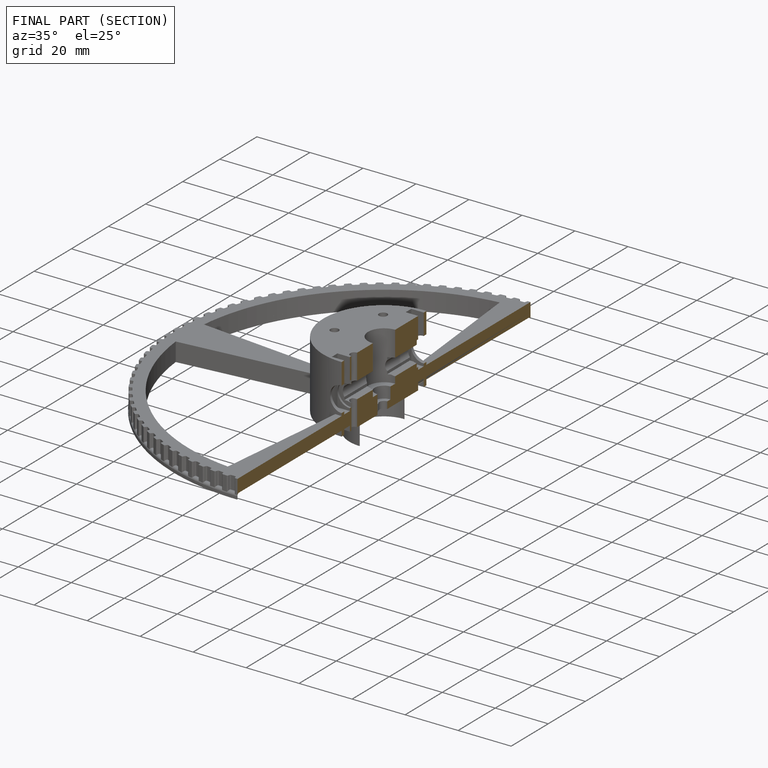
[diagram: finished part — half-section view (interior)]
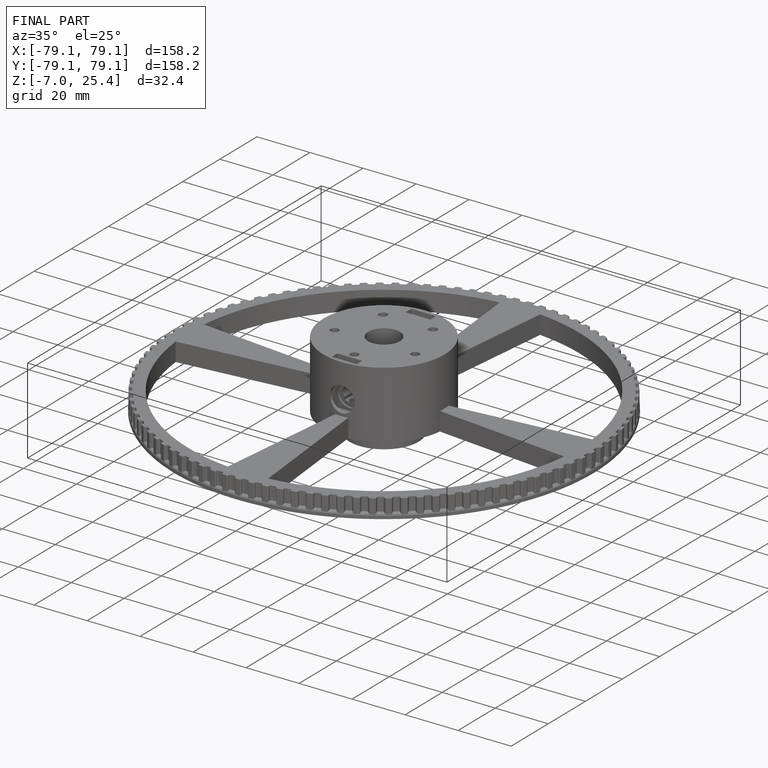
[diagram: finished part — iso view with bounding-box wireframe]
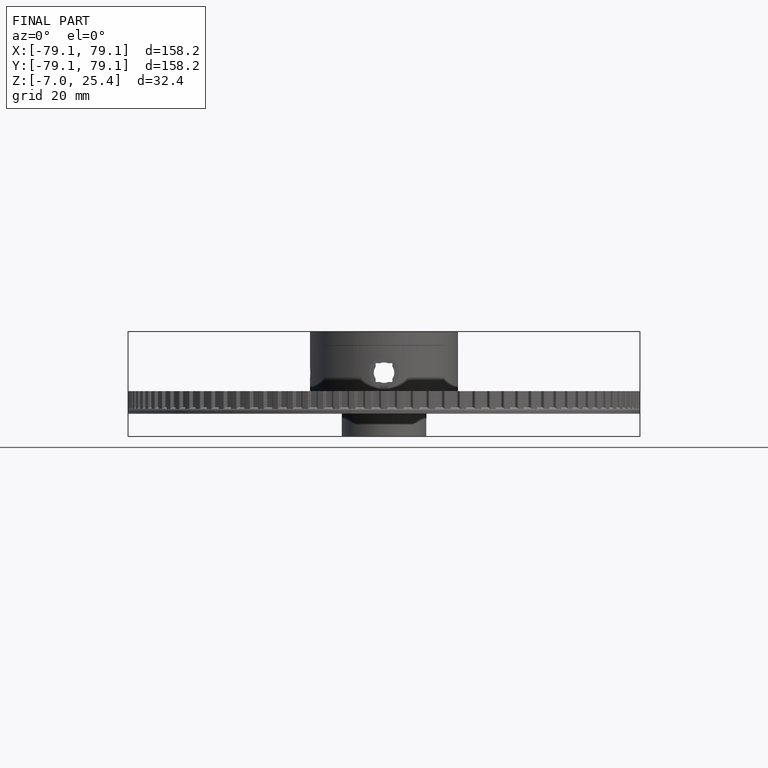
[diagram: finished part — front view with bounding-box wireframe]
